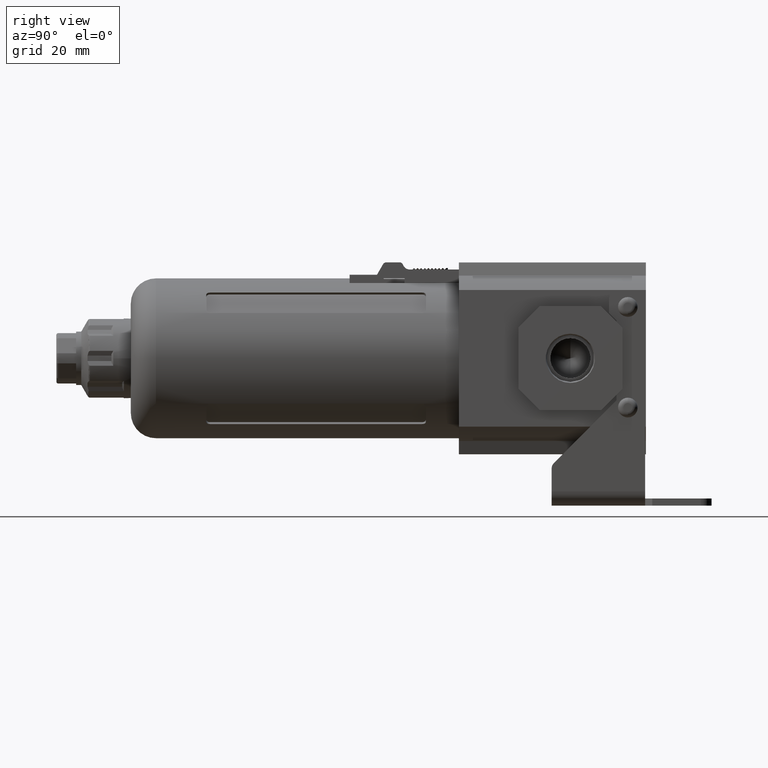
[diagram: clean part render]
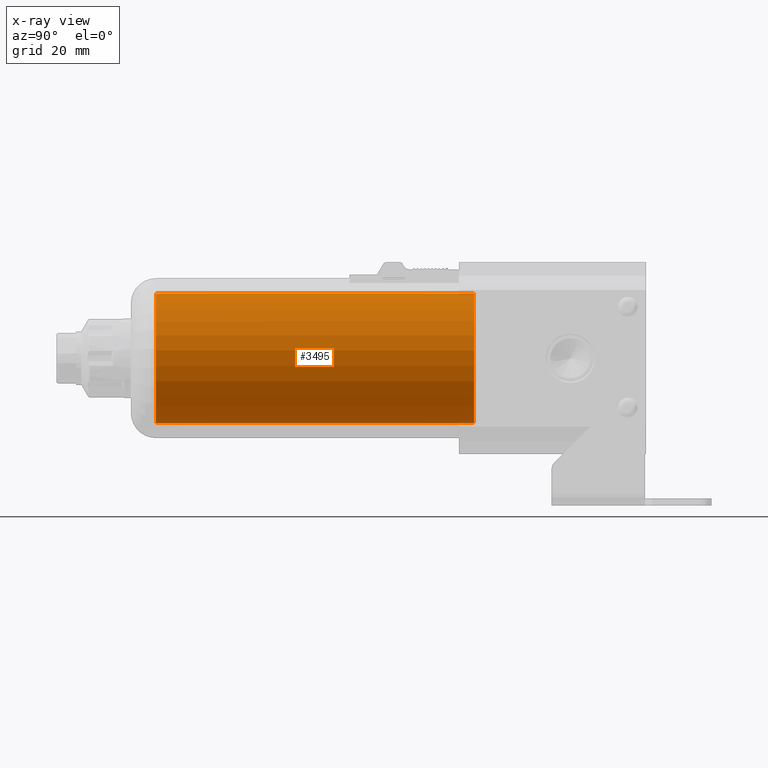
[diagram: x-ray — body ghosted, one internal face saturated and labeled with its STEP entity id]
A machine part, right view, then the same camera in x-ray: the body is ghosted and one INTERNAL B-rep face — a face not visible from any outside direction — is saturated and labeled: STEP entity #3495.
In plain terms, the highlighted cylindrical surface (partial cylindrical patch) has radius 17.995 mm, axis along (0, -1, 0).
Its self-contained STEP definition (entity closure, byte-faithful):
#154 = LINE ( 'NONE', #755, #1759 ) ;
#197 = AXIS2_PLACEMENT_3D ( 'NONE', #8608, #8562, #2976 ) ;
#277 = CIRCLE ( 'NONE', #11280, 17.99500000000000100 ) ;
#755 = CARTESIAN_POINT ( 'NONE',  ( 2.203751915065662000E-015, -26.79999999999999700, 17.99500000000000100 ) ) ;
#795 = DIRECTION ( 'NONE',  ( 0.0000000000000000000, -1.000000000000000000, 0.0000000000000000000 ) ) ;
#881 = CARTESIAN_POINT ( 'NONE',  ( 0.0000000000000000000, -26.79999999999999700, 0.0000000000000000000 ) ) ;
#999 = CARTESIAN_POINT ( 'NONE',  ( 0.0000000000000000000, -115.2999999999999800, 0.0000000000000000000 ) ) ;
#1713 = ORIENTED_EDGE ( 'NONE', *, *, #9455, .F. ) ;
#1759 = VECTOR ( 'NONE', #4490, 1000.000000000000000 ) ;
#1831 = DIRECTION ( 'NONE',  ( 0.0000000000000000000, 0.0000000000000000000, -1.000000000000000000 ) ) ;
#1950 = DIRECTION ( 'NONE',  ( 0.0000000000000000000, 0.0000000000000000000, -1.000000000000000000 ) ) ;
#2070 = CIRCLE ( 'NONE', #10068, 17.99500000000000100 ) ;
#2268 = CARTESIAN_POINT ( 'NONE',  ( 0.0000000000000000000, -115.2999999999999800, -17.99500000000000100 ) ) ;
#2976 = DIRECTION ( 'NONE',  ( 0.0000000000000000000, 0.0000000000000000000, -1.000000000000000000 ) ) ;
#3480 = CARTESIAN_POINT ( 'NONE',  ( 2.203751915065662000E-015, -26.79999999999999700, 17.99500000000000100 ) ) ;
#3495 = ADVANCED_FACE ( 'NONE', ( #3719 ), #5630, .F. ) ;
#3719 = FACE_OUTER_BOUND ( 'NONE', #10719, .T. ) ;
#4081 = VERTEX_POINT ( 'NONE', #2268 ) ;
#4490 = DIRECTION ( 'NONE',  ( 0.0000000000000000000, -1.000000000000000000, 0.0000000000000000000 ) ) ;
#5630 = CYLINDRICAL_SURFACE ( 'NONE', #197, 17.99500000000000100 ) ;
#6225 = EDGE_CURVE ( 'NONE', #6942, #4081, #6985, .T. ) ;
#6423 = CARTESIAN_POINT ( 'NONE',  ( 0.0000000000000000000, -26.79999999999999700, -17.99500000000000100 ) ) ;
#6668 = VERTEX_POINT ( 'NONE', #6810 ) ;
#6810 = CARTESIAN_POINT ( 'NONE',  ( 2.203751915065662000E-015, -115.2999999999999800, 17.99500000000000100 ) ) ;
#6942 = VERTEX_POINT ( 'NONE', #8338 ) ;
#6985 = LINE ( 'NONE', #6423, #12014 ) ;
#7076 = ORIENTED_EDGE ( 'NONE', *, *, #11368, .F. ) ;
#7450 = DIRECTION ( 'NONE',  ( 0.0000000000000000000, -1.000000000000000000, 0.0000000000000000000 ) ) ;
#7562 = DIRECTION ( 'NONE',  ( -0.0000000000000000000, 1.000000000000000000, -0.0000000000000000000 ) ) ;
#8338 = CARTESIAN_POINT ( 'NONE',  ( 0.0000000000000000000, -26.79999999999999700, -17.99500000000000100 ) ) ;
#8562 = DIRECTION ( 'NONE',  ( 0.0000000000000000000, -1.000000000000000000, 0.0000000000000000000 ) ) ;
#8608 = CARTESIAN_POINT ( 'NONE',  ( 0.0000000000000000000, -26.79999999999999700, 0.0000000000000000000 ) ) ;
#9302 = VERTEX_POINT ( 'NONE', #3480 ) ;
#9455 = EDGE_CURVE ( 'NONE', #6942, #9302, #2070, .T. ) ;
#10068 = AXIS2_PLACEMENT_3D ( 'NONE', #881, #7450, #1831 ) ;
#10719 = EDGE_LOOP ( 'NONE', ( #7076, #1713, #10724, #11308 ) ) ;
#10724 = ORIENTED_EDGE ( 'NONE', *, *, #6225, .T. ) ;
#11280 = AXIS2_PLACEMENT_3D ( 'NONE', #999, #7562, #1950 ) ;
#11308 = ORIENTED_EDGE ( 'NONE', *, *, #12056, .F. ) ;
#11368 = EDGE_CURVE ( 'NONE', #9302, #6668, #154, .T. ) ;
#12014 = VECTOR ( 'NONE', #795, 1000.000000000000000 ) ;
#12056 = EDGE_CURVE ( 'NONE', #6668, #4081, #277, .T. ) ;